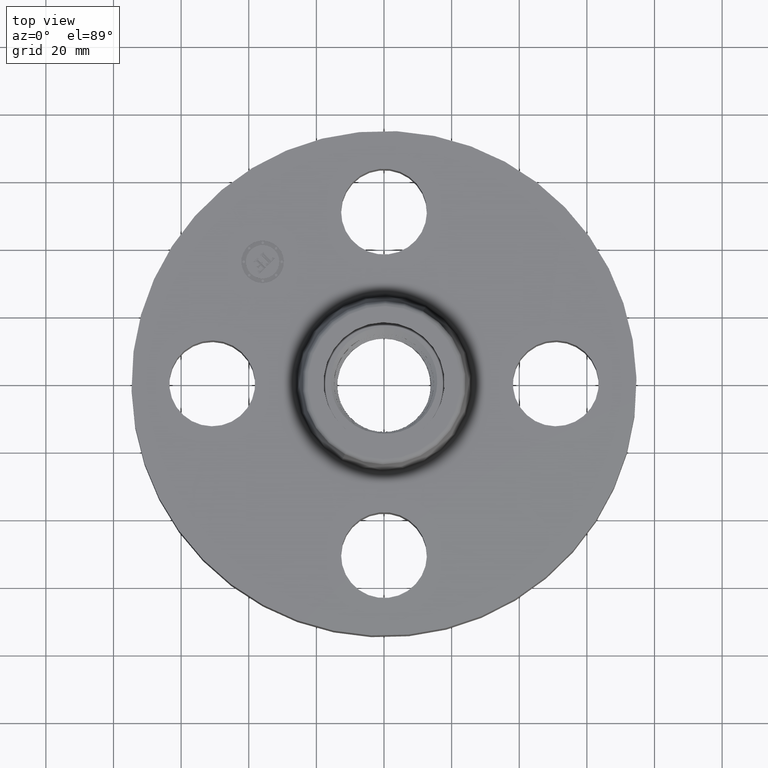
[diagram: clean part render]
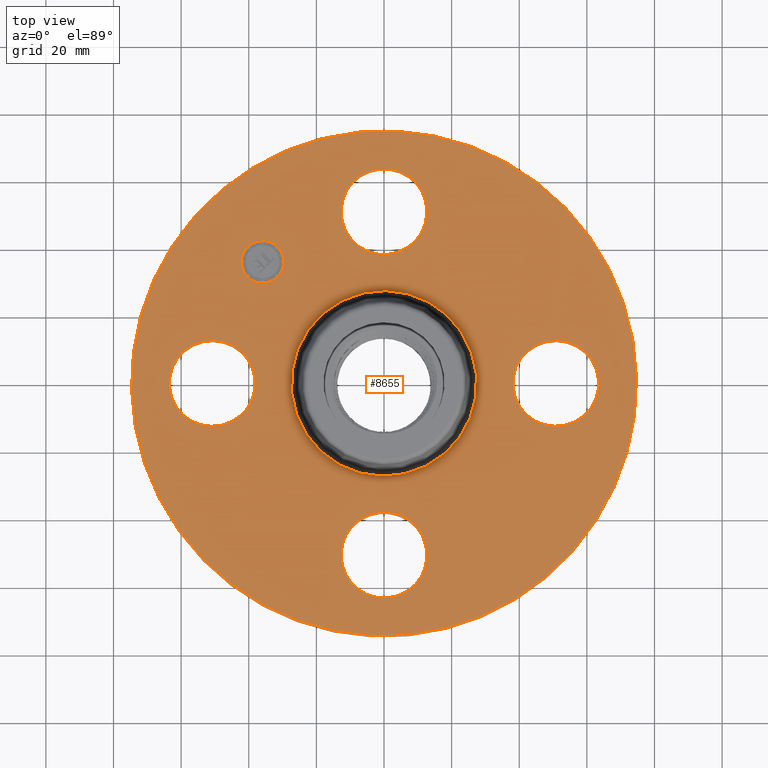
[diagram: same view with one face highlighted and labeled with its STEP entity id]
A machine part, top view. The second image highlights one B-rep face of the part: STEP entity #8655.
In plain terms, the highlighted planar face has unit normal (0, 0, -1).
Its self-contained STEP definition (entity closure, byte-faithful):
#405=AXIS2_PLACEMENT_3D('Circle Axis2P3D',#403,#404,$) ;
#422=AXIS2_PLACEMENT_3D('Circle Axis2P3D',#420,#421,$) ;
#462=AXIS2_PLACEMENT_3D('Circle Axis2P3D',#460,#461,$) ;
#479=AXIS2_PLACEMENT_3D('Circle Axis2P3D',#477,#478,$) ;
#519=AXIS2_PLACEMENT_3D('Circle Axis2P3D',#517,#518,$) ;
#536=AXIS2_PLACEMENT_3D('Circle Axis2P3D',#534,#535,$) ;
#754=AXIS2_PLACEMENT_3D('Circle Axis2P3D',#752,#753,$) ;
#780=AXIS2_PLACEMENT_3D('Circle Axis2P3D',#778,#779,$) ;
#804=AXIS2_PLACEMENT_3D('Circle Axis2P3D',#802,#803,$) ;
#823=AXIS2_PLACEMENT_3D('Circle Axis2P3D',#821,#822,$) ;
#854=AXIS2_PLACEMENT_3D('Circle Axis2P3D',#852,#853,$) ;
#866=AXIS2_PLACEMENT_3D('Circle Axis2P3D',#864,#865,$) ;
#8611=AXIS2_PLACEMENT_3D('Plane Axis2P3D',#8608,#8609,#8610) ;
#8639=AXIS2_PLACEMENT_3D('Circle Axis2P3D',#8637,#8638,$) ;
#8648=AXIS2_PLACEMENT_3D('Circle Axis2P3D',#8646,#8647,$) ;
#386=CARTESIAN_POINT('Vertex',(1.7602872307,-0.438791280947,1.12)) ;
#400=CARTESIAN_POINT('Vertex',(2.23971276931,0.438791280947,1.12)) ;
#403=CARTESIAN_POINT('Axis2P3D Location',(2.00000000001,1.22464679915E-016,1.12)) ;
#420=CARTESIAN_POINT('Axis2P3D Location',(2.00000000001,1.22464679915E-016,1.12)) ;
#443=CARTESIAN_POINT('Vertex',(-0.438791280947,-1.7602872307,1.12)) ;
#457=CARTESIAN_POINT('Vertex',(0.438791280947,-2.23971276931,1.12)) ;
#460=CARTESIAN_POINT('Axis2P3D Location',(2.4492935983E-016,-2.00000000001,1.12)) ;
#477=CARTESIAN_POINT('Axis2P3D Location',(2.4492935983E-016,-2.00000000001,1.12)) ;
#500=CARTESIAN_POINT('Vertex',(-1.7602872307,0.438791280947,1.12)) ;
#514=CARTESIAN_POINT('Vertex',(-2.23971276931,-0.438791280947,1.12)) ;
#517=CARTESIAN_POINT('Axis2P3D Location',(-2.00000000001,-3.67394039746E-016,1.12)) ;
#534=CARTESIAN_POINT('Axis2P3D Location',(-2.00000000001,-3.67394039746E-016,1.12)) ;
#752=CARTESIAN_POINT('Axis2P3D Location',(0.,0.,1.12)) ;
#756=CARTESIAN_POINT('Vertex',(-0.517945452322,-0.948092790991,1.12)) ;
#758=CARTESIAN_POINT('Vertex',(0.517945452322,0.948092790991,1.12)) ;
#778=CARTESIAN_POINT('Axis2P3D Location',(0.,0.,1.12)) ;
#799=CARTESIAN_POINT('Vertex',(1.4095110835,2.58009273197,1.12)) ;
#802=CARTESIAN_POINT('Axis2P3D Location',(0.,0.,1.12)) ;
#806=CARTESIAN_POINT('Vertex',(-1.4095110835,-2.58009273197,1.12)) ;
#821=CARTESIAN_POINT('Axis2P3D Location',(0.,0.,1.12)) ;
#842=CARTESIAN_POINT('Vertex',(0.438791280947,1.7602872307,1.12)) ;
#849=CARTESIAN_POINT('Vertex',(-0.438791280947,2.23971276931,1.12)) ;
#852=CARTESIAN_POINT('Axis2P3D Location',(0.,2.00000000001,1.12)) ;
#864=CARTESIAN_POINT('Axis2P3D Location',(0.,2.00000000001,1.12)) ;
#8608=CARTESIAN_POINT('Axis2P3D Location',(0.,2.94000000001,1.12)) ;
#8637=CARTESIAN_POINT('Axis2P3D Location',(-1.41421356238,1.41421356238,1.12)) ;
#8641=CARTESIAN_POINT('Vertex',(-1.58922249072,1.23920463403,1.12)) ;
#8643=CARTESIAN_POINT('Vertex',(-1.23920463403,1.58922249072,1.12)) ;
#8646=CARTESIAN_POINT('Axis2P3D Location',(-1.41421356238,1.41421356238,1.12)) ;
#404=DIRECTION('Axis2P3D Direction',(0.,-0.,-0.0393700787402)) ;
#421=DIRECTION('Axis2P3D Direction',(0.,-0.,-0.0393700787402)) ;
#461=DIRECTION('Axis2P3D Direction',(-0.,0.,-0.0393700787402)) ;
#478=DIRECTION('Axis2P3D Direction',(-0.,0.,-0.0393700787402)) ;
#518=DIRECTION('Axis2P3D Direction',(0.,0.,-0.0393700787402)) ;
#535=DIRECTION('Axis2P3D Direction',(0.,0.,-0.0393700787402)) ;
#753=DIRECTION('Axis2P3D Direction',(0.,0.,-0.0393700787402)) ;
#779=DIRECTION('Axis2P3D Direction',(0.,0.,-0.0393700787402)) ;
#803=DIRECTION('Axis2P3D Direction',(0.,0.,-0.0393700787402)) ;
#822=DIRECTION('Axis2P3D Direction',(0.,0.,-0.0393700787402)) ;
#853=DIRECTION('Axis2P3D Direction',(0.,-0.,-0.0393700787402)) ;
#865=DIRECTION('Axis2P3D Direction',(0.,-0.,-0.0393700787402)) ;
#8609=DIRECTION('Axis2P3D Direction',(0.,0.,-0.0393700787402)) ;
#8610=DIRECTION('Axis2P3D XDirection',(0.0393700787402,0.,0.)) ;
#8638=DIRECTION('Axis2P3D Direction',(0.,0.,-0.0393700787402)) ;
#8647=DIRECTION('Axis2P3D Direction',(0.,0.,-0.0393700787402)) ;
#8614=ORIENTED_EDGE('',*,*,#808,.F.) ;
#8615=ORIENTED_EDGE('',*,*,#825,.F.) ;
#8618=ORIENTED_EDGE('',*,*,#868,.T.) ;
#8619=ORIENTED_EDGE('',*,*,#856,.T.) ;
#8622=ORIENTED_EDGE('',*,*,#760,.T.) ;
#8623=ORIENTED_EDGE('',*,*,#782,.T.) ;
#8626=ORIENTED_EDGE('',*,*,#407,.T.) ;
#8627=ORIENTED_EDGE('',*,*,#424,.T.) ;
#8630=ORIENTED_EDGE('',*,*,#464,.T.) ;
#8631=ORIENTED_EDGE('',*,*,#481,.T.) ;
#8634=ORIENTED_EDGE('',*,*,#521,.T.) ;
#8635=ORIENTED_EDGE('',*,*,#538,.T.) ;
#8652=ORIENTED_EDGE('',*,*,#8645,.T.) ;
#8653=ORIENTED_EDGE('',*,*,#8650,.T.) ;
#8620=FACE_BOUND('',#8617,.T.) ;
#8624=FACE_BOUND('',#8621,.T.) ;
#8628=FACE_BOUND('',#8625,.T.) ;
#8632=FACE_BOUND('',#8629,.T.) ;
#8636=FACE_BOUND('',#8633,.T.) ;
#8654=FACE_BOUND('',#8651,.T.) ;
#8655=ADVANCED_FACE('PartBody',(#8616,#8620,#8624,#8628,#8632,#8636,#8654),#8612,.F.) ;
#406=CIRCLE('generated circle',#405,0.500000000002) ;
#423=CIRCLE('generated circle',#422,0.500000000002) ;
#463=CIRCLE('generated circle',#462,0.500000000002) ;
#480=CIRCLE('generated circle',#479,0.500000000002) ;
#520=CIRCLE('generated circle',#519,0.500000000002) ;
#537=CIRCLE('generated circle',#536,0.500000000002) ;
#755=CIRCLE('generated circle',#754,1.08034597787) ;
#781=CIRCLE('generated circle',#780,1.08034597787) ;
#805=CIRCLE('generated circle',#804,2.94000000001) ;
#824=CIRCLE('generated circle',#823,2.94000000001) ;
#855=CIRCLE('generated circle',#854,0.500000000002) ;
#867=CIRCLE('generated circle',#866,0.500000000002) ;
#8640=CIRCLE('generated circle',#8639,0.247500000001) ;
#8649=CIRCLE('generated circle',#8648,0.247500000001) ;
#407=EDGE_CURVE('',#387,#401,#406,.T.) ;
#424=EDGE_CURVE('',#401,#387,#423,.T.) ;
#464=EDGE_CURVE('',#444,#458,#463,.T.) ;
#481=EDGE_CURVE('',#458,#444,#480,.T.) ;
#521=EDGE_CURVE('',#501,#515,#520,.T.) ;
#538=EDGE_CURVE('',#515,#501,#537,.T.) ;
#760=EDGE_CURVE('',#757,#759,#755,.T.) ;
#782=EDGE_CURVE('',#759,#757,#781,.T.) ;
#808=EDGE_CURVE('',#800,#807,#805,.T.) ;
#825=EDGE_CURVE('',#807,#800,#824,.T.) ;
#856=EDGE_CURVE('',#843,#850,#855,.T.) ;
#868=EDGE_CURVE('',#850,#843,#867,.T.) ;
#8645=EDGE_CURVE('',#8642,#8644,#8640,.T.) ;
#8650=EDGE_CURVE('',#8644,#8642,#8649,.T.) ;
#8613=EDGE_LOOP('',(#8614,#8615)) ;
#8617=EDGE_LOOP('',(#8618,#8619)) ;
#8621=EDGE_LOOP('',(#8622,#8623)) ;
#8625=EDGE_LOOP('',(#8626,#8627)) ;
#8629=EDGE_LOOP('',(#8630,#8631)) ;
#8633=EDGE_LOOP('',(#8634,#8635)) ;
#8651=EDGE_LOOP('',(#8652,#8653)) ;
#8616=FACE_OUTER_BOUND('',#8613,.T.) ;
#8612=PLANE('',#8611) ;
#387=VERTEX_POINT('',#386) ;
#401=VERTEX_POINT('',#400) ;
#444=VERTEX_POINT('',#443) ;
#458=VERTEX_POINT('',#457) ;
#501=VERTEX_POINT('',#500) ;
#515=VERTEX_POINT('',#514) ;
#757=VERTEX_POINT('',#756) ;
#759=VERTEX_POINT('',#758) ;
#800=VERTEX_POINT('',#799) ;
#807=VERTEX_POINT('',#806) ;
#843=VERTEX_POINT('',#842) ;
#850=VERTEX_POINT('',#849) ;
#8642=VERTEX_POINT('',#8641) ;
#8644=VERTEX_POINT('',#8643) ;